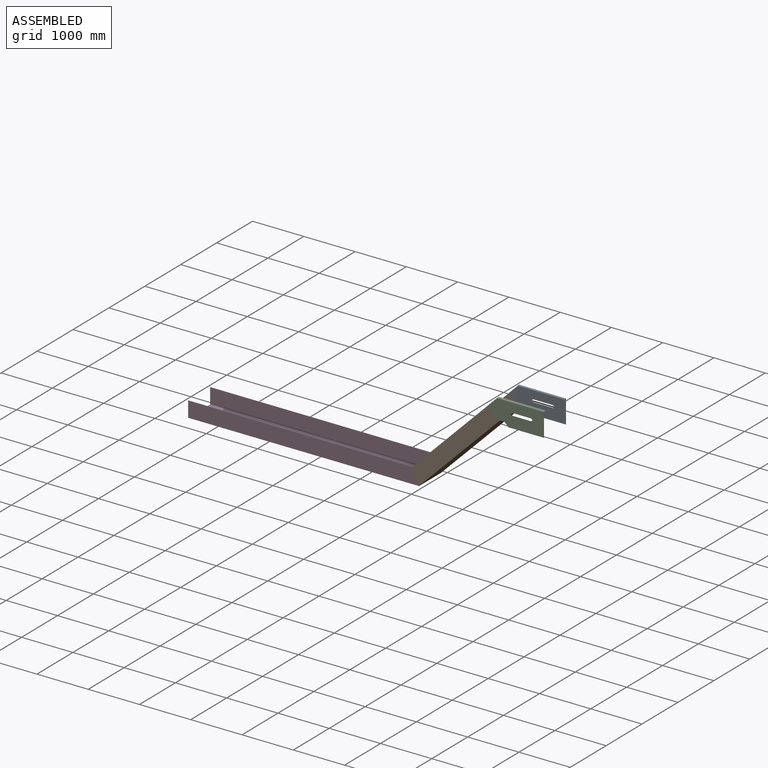
[diagram: assembled view]
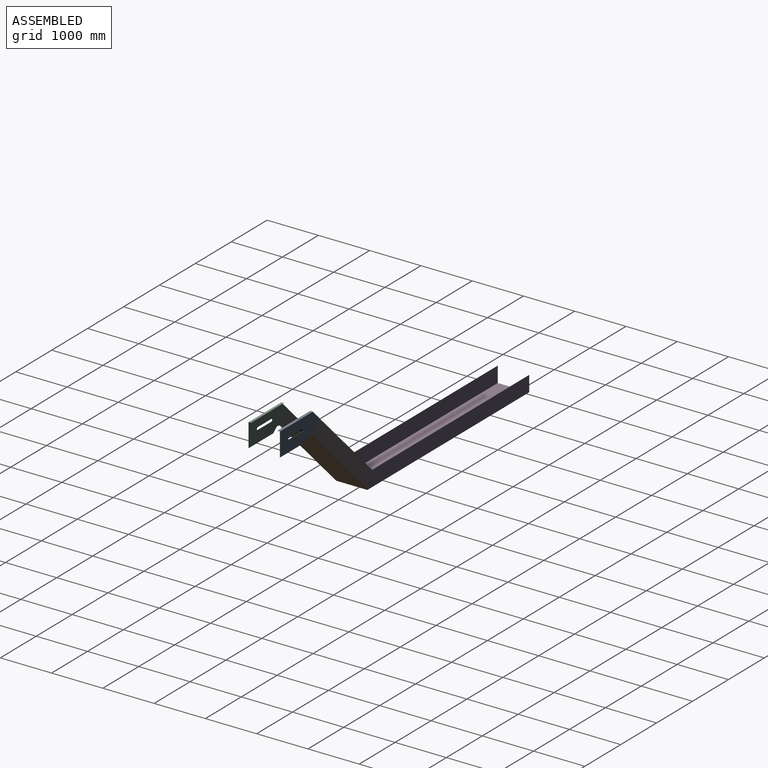
[diagram: assembled view, second angle]
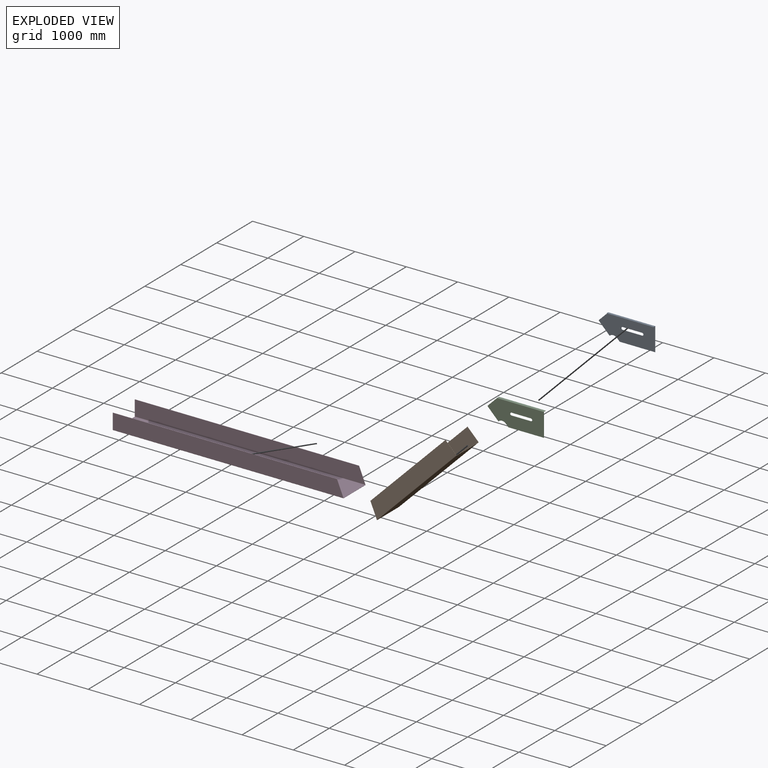
[diagram: exploded view]
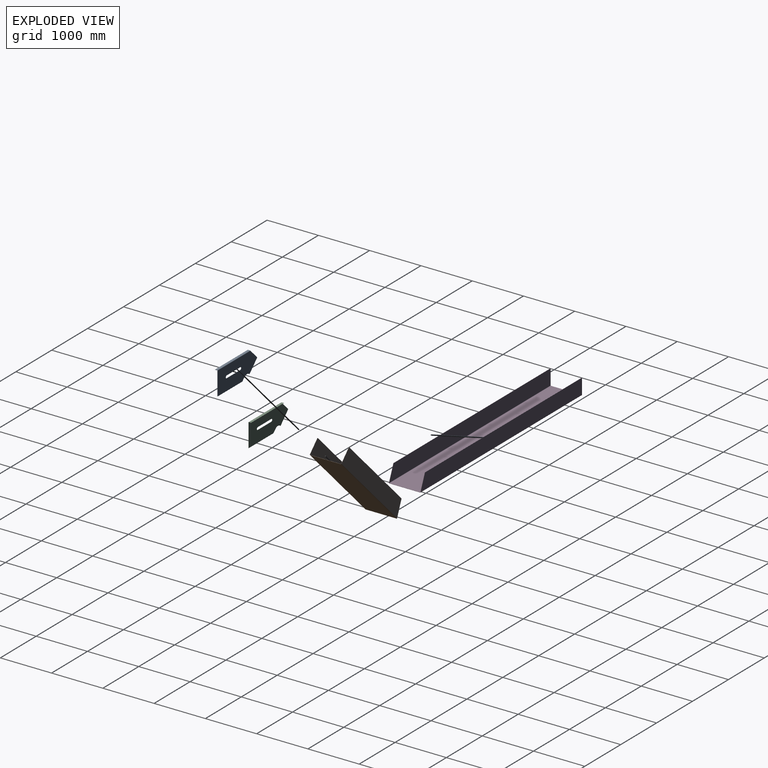
[diagram: exploded view, second angle]
ASSEMBLY  parts=4 mates=3
PART A: 21 faces, bbox 50.8x1103.5x460.6 mm
  f0: plane 453.77x3.42mm, normal (0,1,0), area 1550.2mm2, adj f1,f10,f11,f17
  f1: plane 691.81x3.42mm, normal (0,0,-1), area 2363.4mm2, adj f0,f2,f10,f11
  f2: plane 52.53x52.53mm, normal (0,-0.71,-0.71), area 253.8mm2, adj f1,f3,f10,f11
  f3: cylinder r=101.6mm len=143.68mm, axis (1,0,0), area 545.2mm2, adj f2,f4,f10,f11
  f4: plane 215.53x215.53mm, normal (0,-0.71,-0.71), area 1041.3mm2, adj f3,f9,f10,f11
  f5: cylinder r=25.4mm len=50.8mm, axis (1,0,0), area 272.6mm2, adj f6,f8,f10,f11
  f6: plane 381x3.42mm, normal (0,0,-1), area 1301.6mm2, adj f5,f7,f10,f11
  f7: cylinder r=25.4mm len=50.8mm, axis (1,0,0), area 272.6mm2, adj f6,f8,f10,f11
  f8: plane 381x3.42mm, normal (0,0,1), area 1301.6mm2, adj f5,f7,f10,f11
  f9: plane 185.72x185.72mm, normal (0,-0.71,0.71), area 897.3mm2, adj f4,f10,f11,f18
  f10: plane 1103.55x453.77mm, normal (-1,0,0), area 415712.2mm2, adj f0,f1,f2,f3,f4,f5,f6,f7
  f11: plane 1103.55x453.77mm, normal (1,0,0), area 415712.2mm2, adj f0,f1,f2,f3,f4,f5,f6,f7
  f12: plane 914.4x3.42mm, normal (1,0,0), area 3123.9mm2, adj f13,f14,f15,f16
  f13: plane 43.95x3.42mm, normal (0,1,0), area 150.2mm2, adj f12,f15,f16,f17
  f14: plane 43.95x3.42mm, normal (0,-1,0), area 150.2mm2, adj f12,f15,f16,f18
  f15: plane 914.4x43.95mm, normal (0,0,1), area 40192.2mm2, adj f12,f13,f14,f19
  f16: plane 914.4x43.95mm, normal (0,0,-1), area 40192.2mm2, adj f12,f13,f14,f20
  f17: plane 6.85x6.85mm, normal (0,1,0), area 27.6mm2, adj f0,f13,f19,f20
  f18: bspline ~6.85x6.85mm, area 31.5mm2, adj f9,f14,f19,f20
  f19: cylinder r=6.85mm len=917.83mm, axis (0,1,0), area 9841.5mm2, adj f10,f15,f17,f18
  f20: cylinder r=3.43mm len=917.83mm, axis (0,1,0), area 4929.9mm2, adj f11,f16,f17,f18
PART B: 22 faces, bbox 616.4x1681.2x1770.5 mm
  f0: plane 602.74x2.42mm, normal (0,-0.71,-0.71), area 2059.1mm2, adj f2,f3,f10,f19
  f1: plane 602.74x2.42mm, normal (0,0.71,0.71), area 2059.1mm2, adj f2,f3,f9,f18
  f2: plane 1552.53x1552.53mm, normal (0,0.71,-0.71), area 1323381.4mm2, adj f0,f1,f11,f20
  f3: plane 1552.53x1552.53mm, normal (0,-0.71,0.71), area 1323381.4mm2, adj f0,f1,f12,f21
  f4: plane 1463.25x1463.25mm, normal (0,-0.71,0.71), area 7069.5mm2, adj f5,f6,f7,f8
  f5: plane 213.1x213.1mm, normal (0,0.71,0.71), area 1029.6mm2, adj f4,f7,f8,f9
  f6: plane 301.37x124.83mm, normal (0,-0.92,-0.38), area 1114.4mm2, adj f4,f7,f8,f10
  f7: plane 1764.62x1676.35mm, normal (-1,0,0), area 642452.3mm2, adj f4,f5,f6,f11
  f8: plane 1764.62x1676.35mm, normal (1,0,0), area 642452.3mm2, adj f4,f5,f6,f12
  f9: plane 6.85x4.84mm, normal (0,0.71,0.71), area 27.6mm2, adj f1,f5,f11,f12
  f10: bspline ~6.85x5.84mm, area 28.1mm2, adj f0,f6,f11,f12
  f11: cylinder r=6.85mm len=1557.37mm, axis (0,0.71,0.71), area 23600.7mm2, adj f2,f7,f9,f10
  f12: cylinder r=3.43mm len=1554.95mm, axis (0,0.71,0.71), area 11822.3mm2, adj f3,f8,f9,f10
  f13: plane 1463.25x1463.25mm, normal (0,-0.71,0.71), area 7069.5mm2, adj f14,f15,f16,f17
  f14: plane 301.37x124.83mm, normal (0,-0.92,-0.38), area 1114.4mm2, adj f13,f16,f17,f19
  f15: plane 213.1x213.1mm, normal (0,0.71,0.71), area 1029.6mm2, adj f13,f16,f17,f18
  f16: plane 1764.62x1676.35mm, normal (1,0,0), area 642452.3mm2, adj f13,f14,f15,f20
  f17: plane 1764.62x1676.35mm, normal (-1,0,0), area 642452.3mm2, adj f13,f14,f15,f21
  f18: plane 6.85x4.84mm, normal (0,0.71,0.71), area 27.6mm2, adj f1,f15,f20,f21
  f19: bspline ~6.85x5.84mm, area 28.2mm2, adj f0,f14,f20,f21
  f20: cylinder r=6.85mm len=1557.37mm, axis (0,0.71,0.71), area 23600.7mm2, adj f2,f16,f18,f19
  f21: cylinder r=3.43mm len=1554.95mm, axis (0,0.71,0.71), area 11822.3mm2, adj f3,f17,f18,f19
PART C: 21 faces, bbox 50.8x1103.5x460.6 mm
  f0: plane 52.53x52.53mm, normal (0,-0.71,-0.71), area 253.8mm2, adj f1,f9,f10,f11
  f1: plane 691.81x3.42mm, normal (0,0,-1), area 2363.4mm2, adj f0,f2,f10,f11
  f2: plane 453.77x3.42mm, normal (0,1,0), area 1550.2mm2, adj f1,f10,f11,f17
  f3: plane 185.72x185.72mm, normal (0,-0.71,0.71), area 897.3mm2, adj f4,f10,f11,f18
  f4: plane 215.53x215.53mm, normal (0,-0.71,-0.71), area 1041.3mm2, adj f3,f9,f10,f11
  f5: cylinder r=25.4mm len=50.8mm, axis (1,0,0), area 272.6mm2, adj f6,f8,f10,f11
  f6: plane 381x3.42mm, normal (0,0,1), area 1301.6mm2, adj f5,f7,f10,f11
  f7: cylinder r=25.4mm len=50.8mm, axis (1,0,0), area 272.6mm2, adj f6,f8,f10,f11
  f8: plane 381x3.42mm, normal (0,0,-1), area 1301.6mm2, adj f5,f7,f10,f11
  f9: cylinder r=101.6mm len=143.68mm, axis (1,0,0), area 545.2mm2, adj f0,f4,f10,f11
  f10: plane 1103.55x453.77mm, normal (1,0,0), area 415712.2mm2, adj f0,f1,f2,f3,f4,f5,f6,f7
  f11: plane 1103.55x453.77mm, normal (-1,0,0), area 415712.2mm2, adj f0,f1,f2,f3,f4,f5,f6,f7
  f12: plane 914.4x3.42mm, normal (-1,0,0), area 3123.9mm2, adj f13,f14,f15,f16
  f13: plane 43.95x3.42mm, normal (0,-1,0), area 150.2mm2, adj f12,f15,f16,f18
  f14: plane 43.95x3.42mm, normal (0,1,0), area 150.2mm2, adj f12,f15,f16,f17
  f15: plane 914.4x43.95mm, normal (0,0,1), area 40192.2mm2, adj f12,f13,f14,f19
  f16: plane 914.4x43.95mm, normal (0,0,-1), area 40192.2mm2, adj f12,f13,f14,f20
  f17: plane 6.85x6.85mm, normal (0,1,0), area 27.6mm2, adj f2,f14,f19,f20
  f18: bspline ~6.85x6.85mm, area 31.5mm2, adj f3,f13,f19,f20
  f19: cylinder r=6.85mm len=917.83mm, axis (0,1,0), area 9841.5mm2, adj f10,f15,f17,f18
  f20: cylinder r=3.43mm len=917.83mm, axis (0,1,0), area 4929.9mm2, adj f11,f16,f17,f18
PART D: 22 faces, bbox 4500x616.4x308.2 mm
  f0: plane 301.37x3.42mm, normal (-1,0,0), area 1029.6mm2, adj f1,f3,f4,f14
  f1: plane 4373.75x3.42mm, normal (0,0,1), area 14942mm2, adj f0,f2,f3,f4
  f2: plane 301.37x124.83mm, normal (0.92,0,0.38), area 1114.4mm2, adj f1,f3,f4,f15
  f3: plane 4498.58x301.37mm, normal (0,1,0), area 1336931.1mm2, adj f0,f1,f2,f16
  f4: plane 4498.58x301.37mm, normal (0,-1,0), area 1336931.1mm2, adj f0,f1,f2,f17
  f5: plane 301.37x124.83mm, normal (0.92,0,0.38), area 1114.4mm2, adj f6,f8,f9,f19
  f6: plane 4373.75x3.42mm, normal (0,0,1), area 14942mm2, adj f5,f7,f8,f9
  f7: plane 301.37x3.42mm, normal (-1,0,0), area 1029.6mm2, adj f6,f8,f9,f18
  f8: plane 4498.58x301.37mm, normal (0,-1,0), area 1336931.1mm2, adj f5,f6,f7,f20
  f9: plane 4498.58x301.37mm, normal (0,1,0), area 1336931.1mm2, adj f5,f6,f7,f21
  f10: plane 602.74x3.42mm, normal (-1,0,0), area 2059.1mm2, adj f12,f13,f14,f18
  f11: plane 602.74x3.42mm, normal (1,0,0), area 2059.1mm2, adj f12,f13,f15,f19
  f12: plane 4500x602.74mm, normal (0,0,-1), area 2712339mm2, adj f10,f11,f16,f20
  f13: plane 4500x602.74mm, normal (0,0,1), area 2712339mm2, adj f10,f11,f17,f21
  f14: plane 6.85x6.85mm, normal (-1,0,0), area 27.6mm2, adj f0,f10,f16,f17
  f15: bspline ~6.85x6.85mm, area 28.2mm2, adj f2,f11,f16,f17
  f16: cylinder r=6.85mm len=4500mm, axis (-1,0,0), area 48378.9mm2, adj f3,f12,f14,f15
  f17: cylinder r=3.43mm len=4500mm, axis (-1,0,0), area 24234.3mm2, adj f4,f13,f14,f15
  f18: plane 6.85x6.85mm, normal (-1,0,0), area 27.6mm2, adj f7,f10,f20,f21
  f19: bspline ~6.85x6.85mm, area 28.1mm2, adj f5,f11,f20,f21
  f20: cylinder r=6.85mm len=4500mm, axis (-1,0,0), area 48378.9mm2, adj f8,f12,f18,f19
  f21: cylinder r=3.43mm len=4500mm, axis (-1,0,0), area 24234.3mm2, adj f9,f13,f18,f19
PLACE A rot(axis=(0,0,-1),90deg) t=(2048.93,0,1597.83)mm
PLACE B rot(axis=(0,0,-1),90deg) t=(0,0,0)mm
PLACE C rot(axis=(0,0,-1),90deg) t=(2048.93,0,1597.83)mm
PLACE D at identity
MATE fastened C.f4 <-> B.f15  axis (-0.71,0,-0.71) through (1506.68,-306.51,1509.1)mm
MATE fastened A.f4 <-> B.f5  axis (-0.71,0,-0.71) through (1506.68,306.51,1509.1)mm
MATE fastened B.f14 <-> D.f5  axis (-0.92,0,-0.38) through (-0.71,-306.51,1.71)mm
